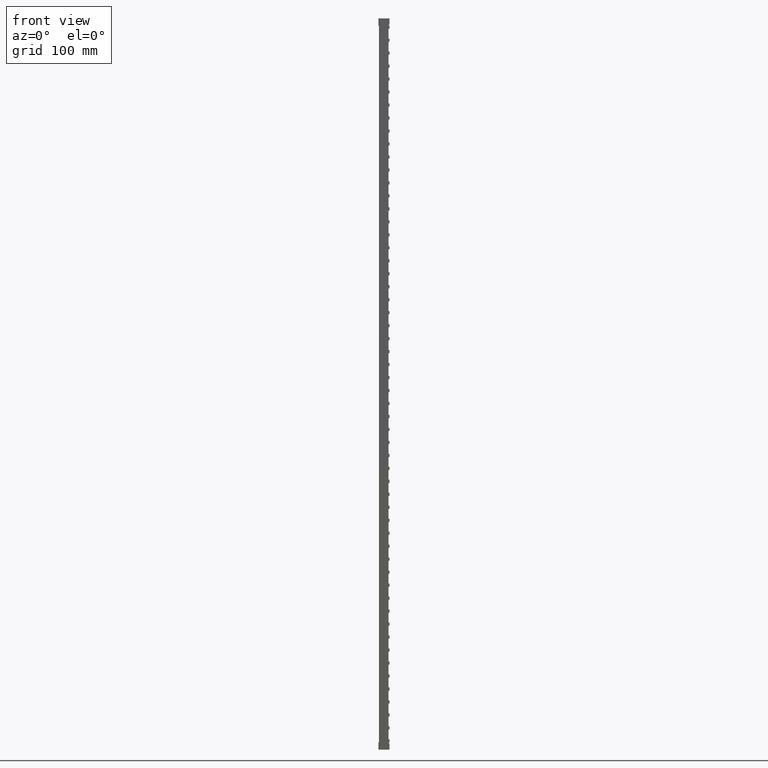
[diagram: clean part render]
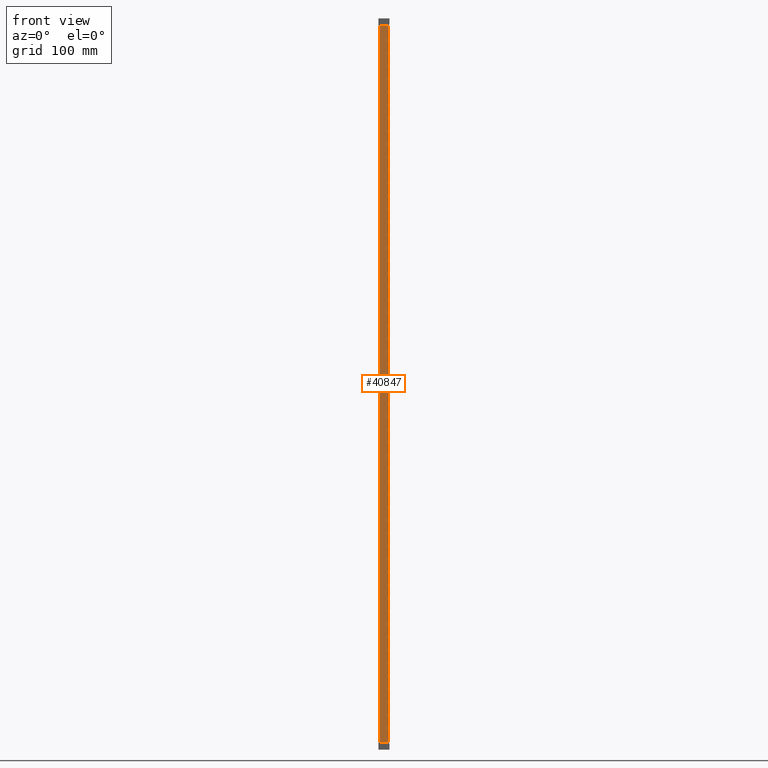
[diagram: same view with one face highlighted and labeled with its STEP entity id]
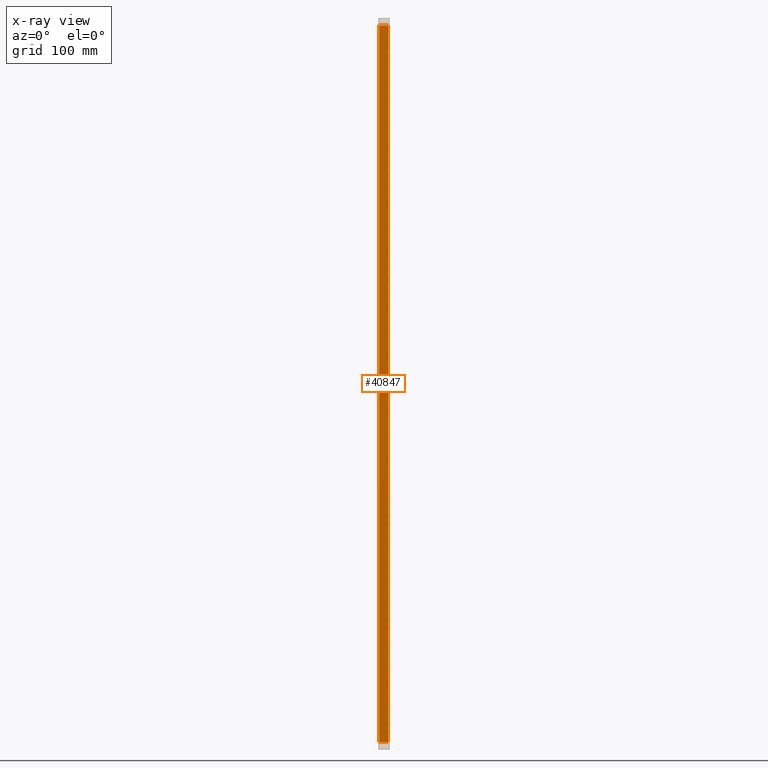
[diagram: x-ray of the same camera — body ghosted, the highlighted face saturated]
A machine part, front view. The second image highlights one B-rep face of the part: STEP entity #40847.
The next image is the same camera in x-ray: the body ghosted, the highlighted face saturated — about 0% of this face is hidden behind the body in this view.
In plain terms, the highlighted planar face has unit normal (-0, 1, 0).
Its self-contained STEP definition (entity closure, byte-faithful):
#5021 = ORIENTED_EDGE ( 'NONE', *, *, #70785, .F. ) ;
#5023 = ORIENTED_EDGE ( 'NONE', *, *, #70707, .F. ) ;
#5025 = ORIENTED_EDGE ( 'NONE', *, *, #70754, .F. ) ;
#5068 = ORIENTED_EDGE ( 'NONE', *, *, #70760, .F. ) ;
#7457 = CARTESIAN_POINT ( 'NONE',  ( 4.262214489576891600E-009, 5.554785572628156900E-014, -761.9000000000003200 ) ) ;
#7476 = CARTESIAN_POINT ( 'NONE',  ( 11.80192812968149100, 1.341396426228931100E-007, -761.9000000000003200 ) ) ;
#7487 = CARTESIAN_POINT ( 'NONE',  ( 11.80192812893712600, 1.341396425150475800E-007, 209.9000000000000100 ) ) ;
#7493 = CARTESIAN_POINT ( 'NONE',  ( 1.021155591017636500E-009, 5.594071425335036300E-014, 209.9000000000000100 ) ) ;
#26837 = CARTESIAN_POINT ( 'NONE',  ( 0.0000000000000000000, 5.551115123125782700E-014, -761.9000000000008900 ) ) ;
#26846 = LINE ( 'NONE', #26837, #70491 ) ;
#26865 = DIRECTION ( 'NONE',  ( -0.9999999999999998900, -1.136590436583420100E-008, 0.0000000000000000000 ) ) ;
#26970 = DIRECTION ( 'NONE',  ( -0.0000000000000000000, -0.0000000000000000000, -1.000000000000000000 ) ) ;
#26977 = CARTESIAN_POINT ( 'NONE',  ( 0.0000000000000000000, 5.551115123125782700E-014, 209.9000000000000100 ) ) ;
#26982 = LINE ( 'NONE', #26977, #66998 ) ;
#26990 = CARTESIAN_POINT ( 'NONE',  ( 11.80192812893712400, 1.341396419570991900E-007, 219.0000000000000000 ) ) ;
#27006 = DIRECTION ( 'NONE',  ( 0.9999999999999998900, 1.136590436583420100E-008, -0.0000000000000000000 ) ) ;
#27007 = LINE ( 'NONE', #26990, #69390 ) ;
#27031 = LINE ( 'NONE', #27081, #67049 ) ;
#27081 = CARTESIAN_POINT ( 'NONE',  ( 3.551845538125520500E-009, 5.555152116796637600E-014, 219.0000000000000000 ) ) ;
#27084 = DIRECTION ( 'NONE',  ( 0.0000000000000000000, 0.0000000000000000000, 1.000000000000000000 ) ) ;
#40847 = ADVANCED_FACE ( 'NONE', ( #73769 ), #73813, .F. ) ;
#41950 = VERTEX_POINT ( 'NONE', #7476 ) ;
#41985 = VERTEX_POINT ( 'NONE', #7487 ) ;
#41994 = VERTEX_POINT ( 'NONE', #7493 ) ;
#42007 = VERTEX_POINT ( 'NONE', #7457 ) ;
#45862 = EDGE_LOOP ( 'NONE', ( #5021, #5023, #5025, #5068 ) ) ;
#66998 = VECTOR ( 'NONE', #27006, 1000.000000000000100 ) ;
#67049 = VECTOR ( 'NONE', #27084, 1000.000000000000000 ) ;
#69390 = VECTOR ( 'NONE', #26970, 1000.000000000000000 ) ;
#70491 = VECTOR ( 'NONE', #26865, 1000.000000000000100 ) ;
#70707 = EDGE_CURVE ( 'NONE', #41950, #42007, #26846, .T. ) ;
#70754 = EDGE_CURVE ( 'NONE', #41985, #41950, #27007, .T. ) ;
#70760 = EDGE_CURVE ( 'NONE', #41994, #41985, #26982, .T. ) ;
#70785 = EDGE_CURVE ( 'NONE', #42007, #41994, #27031, .T. ) ;
#73767 = DIRECTION ( 'NONE',  ( -0.9999999999999998900, -1.136590436583420100E-008, 0.0000000000000000000 ) ) ;
#73769 = FACE_OUTER_BOUND ( 'NONE', #45862, .T. ) ;
#73771 = CARTESIAN_POINT ( 'NONE',  ( 0.0000000000000000000, 5.551115123125782700E-014, 219.0000000000000000 ) ) ;
#73813 = PLANE ( 'NONE',  #74907 ) ;
#73814 = DIRECTION ( 'NONE',  ( -1.136590436583420300E-008, 1.000000000000000000, 0.0000000000000000000 ) ) ;
#74907 = AXIS2_PLACEMENT_3D ( 'NONE', #73771, #73814, #73767 ) ;